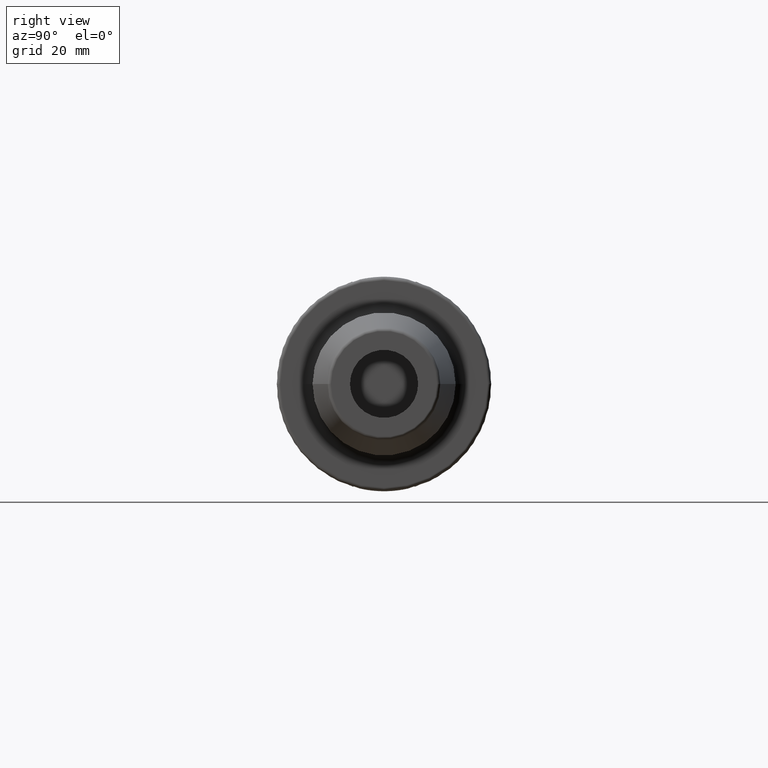
[diagram: clean part render]
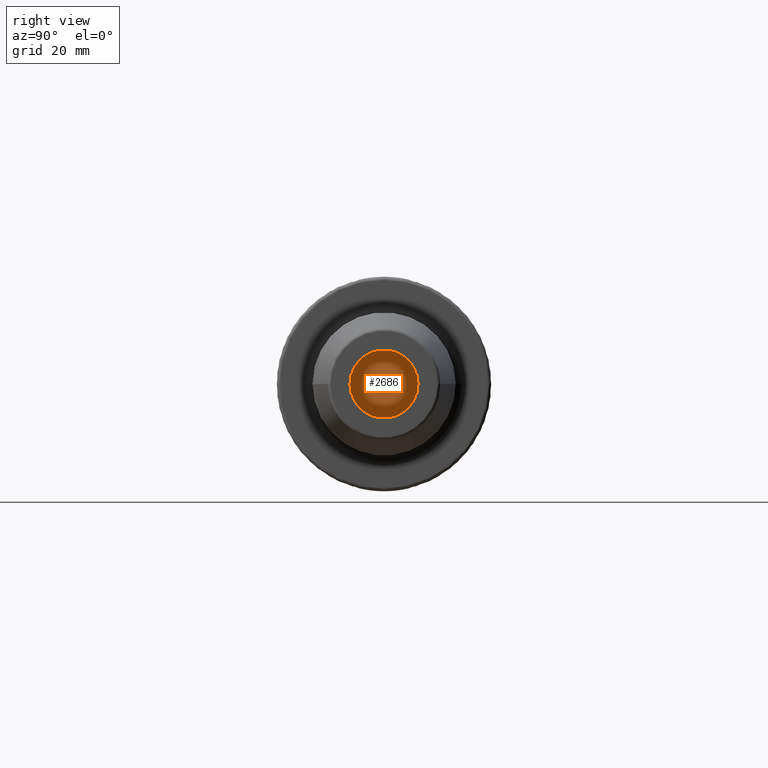
[diagram: same view with one face highlighted and labeled with its STEP entity id]
A machine part, right view. The second image highlights one B-rep face of the part: STEP entity #2686.
In plain terms, the highlighted planar face has unit normal (1, 0, 0).
Its self-contained STEP definition (entity closure, byte-faithful):
#940=CARTESIAN_POINT('',(7.8E1,0.E0,0.E0));
#941=DIRECTION('',(-1.E0,0.E0,0.E0));
#942=DIRECTION('',(0.E0,1.E0,0.E0));
#943=AXIS2_PLACEMENT_3D('',#940,#941,#942);
#945=CARTESIAN_POINT('',(7.8E1,0.E0,0.E0));
#946=DIRECTION('',(1.E0,0.E0,0.E0));
#947=DIRECTION('',(0.E0,1.E0,0.E0));
#948=AXIS2_PLACEMENT_3D('',#945,#946,#947);
#1393=CARTESIAN_POINT('',(7.8E1,1.E1,0.E0));
#1394=CARTESIAN_POINT('',(7.8E1,-1.E1,0.E0));
#1395=VERTEX_POINT('',#1393);
#1396=VERTEX_POINT('',#1394);
#2677=CARTESIAN_POINT('',(7.8E1,0.E0,0.E0));
#2678=DIRECTION('',(1.E0,0.E0,0.E0));
#2679=DIRECTION('',(0.E0,-1.E0,0.E0));
#2680=AXIS2_PLACEMENT_3D('',#2677,#2678,#2679);
#2681=PLANE('',#2680);
#2682=ORIENTED_EDGE('',*,*,#2672,.T.);
#2683=ORIENTED_EDGE('',*,*,#2656,.F.);
#2684=EDGE_LOOP('',(#2682,#2683));
#2685=FACE_OUTER_BOUND('',#2684,.F.);
#2686=ADVANCED_FACE('',(#2685),#2681,.T.);
#944=CIRCLE('',#943,1.E1);
#949=CIRCLE('',#948,1.E1);
#2656=EDGE_CURVE('',#1395,#1396,#949,.T.);
#2672=EDGE_CURVE('',#1395,#1396,#944,.T.);